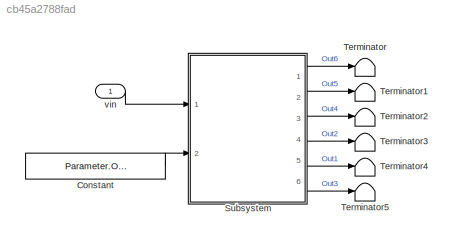
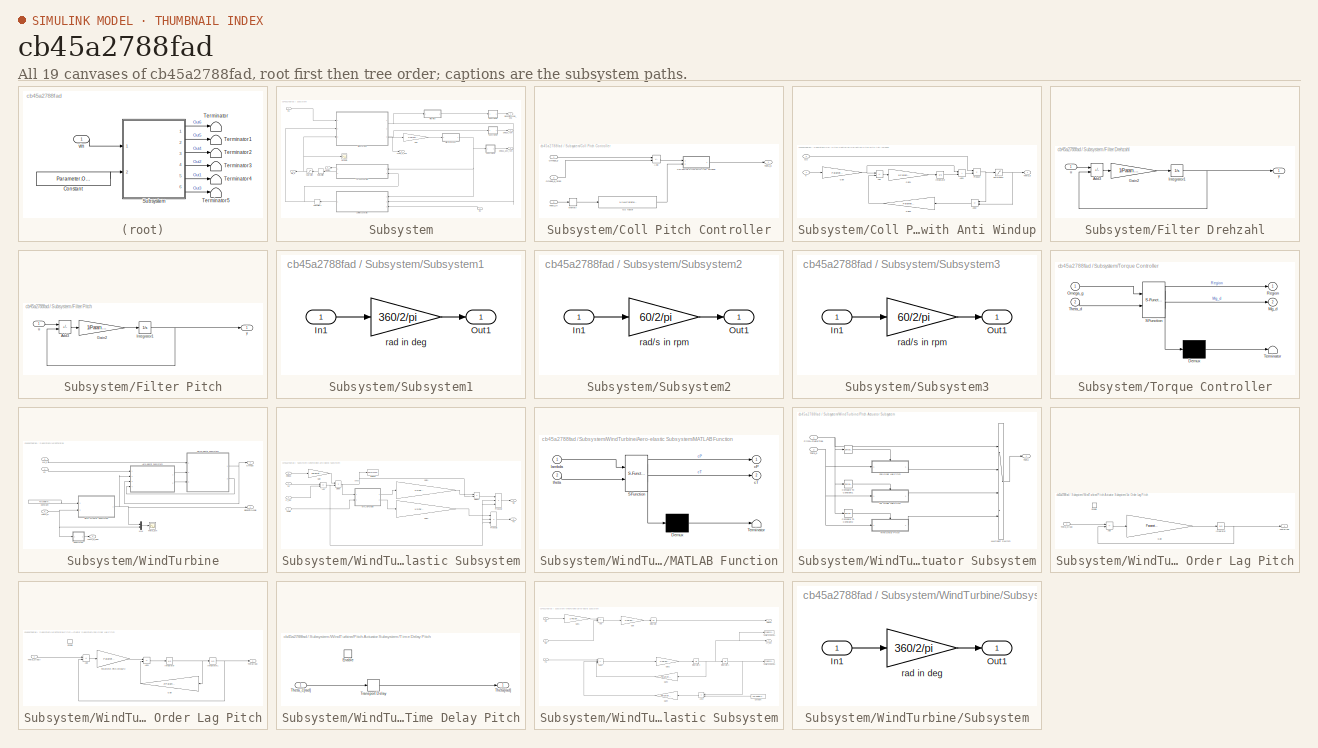
[diagram: thumbnail index - all 19 canvases of the model, root first then tree order]
MODEL slx_cb45a2788fad
KIND model
CONFIG AbsTol = auto
CONFIG EnableMultiTasking = on
CONFIG FixedStep = Parameter.Time.dt
CONFIG MaxStep = auto
CONFIG MinStep = auto
CONFIG RelTol = 1e-3
CONFIG SampleTimeConstraint = Unconstrained
CONFIG SolverName = ode4
CONFIG StartTime = 0.0
CONFIG StopTime = 630
BLOCK [Constant] Constant
  Value = Parameter.Omega_g_rated
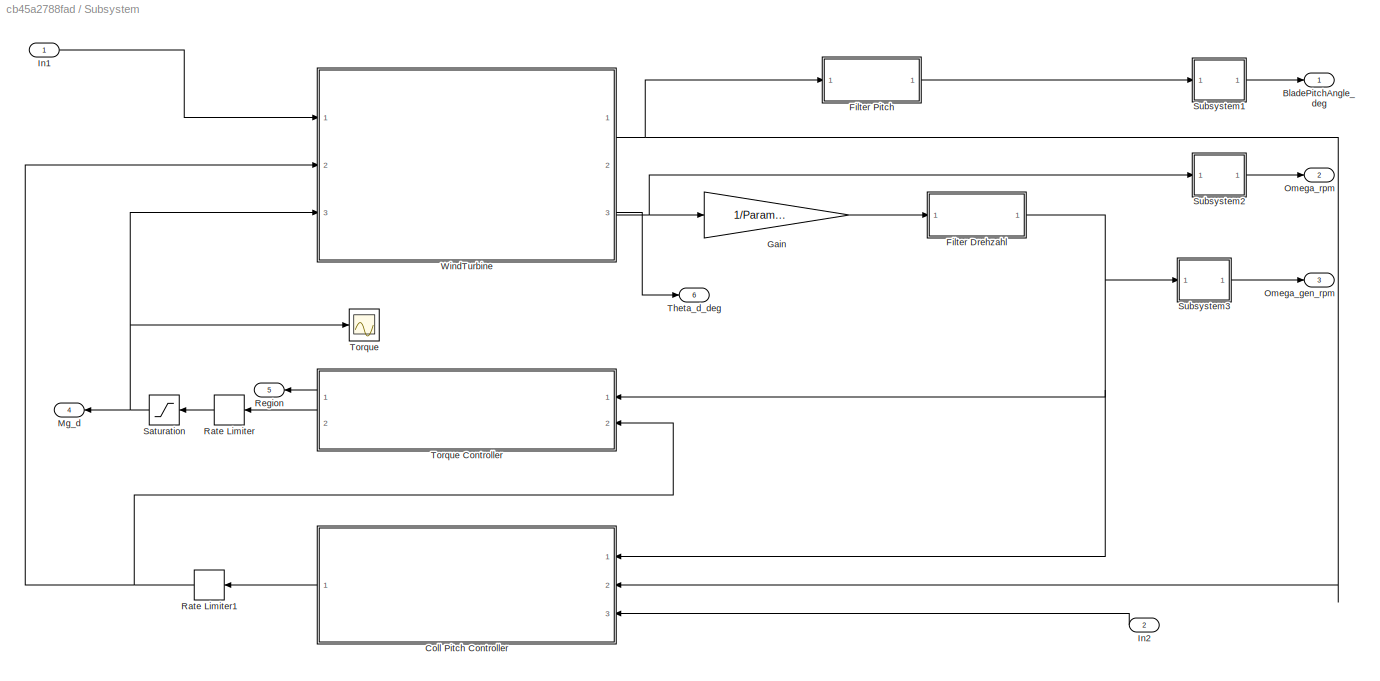
BLOCK [SubSystem] Subsystem
  Ports = [2, 6]
  RequestExecContextInheritance = off
BLOCK [Outport] Subsystem/BladePitchAngle_deg
  VectorParamsAs1DForOutWhenUnconnected = off
BLOCK [SubSystem] Subsystem/Coll Pitch Controller
  Ports = [3, 1]
  RequestExecContextInheritance = off
BLOCK [Sum] Subsystem/Coll Pitch Controller/Add
  IconShape = rectangular
  Inputs = +-
  Ports = [2, 1]
BLOCK [SubSystem] Subsystem/Coll Pitch Controller/Collective Pitch with Anti Windup
  Ports = [2, 1]
  RequestExecContextInheritance = off
BLOCK [Sum] Subsystem/Coll Pitch Controller/Collective Pitch with Anti Windup/Add
  IconShape = rectangular
  Inputs = +-
  Ports = [2, 1]
BLOCK [Sum] Subsystem/Coll Pitch Controller/Collective Pitch with Anti Windup/Add1
  IconShape = rectangular
  Ports = [2, 1]
BLOCK [Sum] Subsystem/Coll Pitch Controller/Collective Pitch with Anti Windup/Add2
  IconShape = rectangular
  Inputs = +-
  Ports = [2, 1]
BLOCK [Inport] Subsystem/Coll Pitch Controller/Collective Pitch with Anti Windup/GS
  Port = 2
BLOCK [Gain] Subsystem/Coll Pitch Controller/Collective Pitch with Anti Windup/Gain
  Gain = Parameter.Pitch.CPC.KP
BLOCK [Gain] Subsystem/Coll Pitch Controller/Collective Pitch with Anti Windup/Gain1
  Gain = 1/Parameter.Pitch.CPC.TI
BLOCK [Gain] Subsystem/Coll Pitch Controller/Collective Pitch with Anti Windup/Gain2
  Gain = Parameter.Pitch.CPC.AntiWindUp
BLOCK [Integrator] Subsystem/Coll Pitch Controller/Collective Pitch with Anti Windup/Integrator
  InitialCondition = Parameter.Pitch.Theta0*(1+Parameter.Pitch.Theta0/Parameter.Pitch.CPC.GS_factor)
  Ports = [1, 1]
BLOCK [Product] Subsystem/Coll Pitch Controller/Collective Pitch with Anti Windup/Product
  Ports = [2, 1]
BLOCK [Saturate] Subsystem/Coll Pitch Controller/Collective Pitch with Anti Windup/Saturation1
  LowerLimit = Parameter.Pitch.Min
  UpperLimit = Parameter.Pitch.Max
BLOCK [Outport] Subsystem/Coll Pitch Controller/Collective Pitch with Anti Windup/Theta_d
  VectorParamsAs1DForOutWhenUnconnected = off
BLOCK [Inport] Subsystem/Coll Pitch Controller/Collective Pitch with Anti Windup/e
BLOCK [Fcn] Subsystem/Coll Pitch Controller/GS factor 
  Expr = 1/(1+u/Parameter.Pitch.CPC.GS_factor)
BLOCK [Memory] Subsystem/Coll Pitch Controller/Memory
  InitialCondition = Parameter.Pitch.Theta0
BLOCK [Inport] Subsystem/Coll Pitch Controller/Omega_g
BLOCK [Inport] Subsystem/Coll Pitch Controller/Omega_g_rated
  Port = 3
BLOCK [Outport] Subsystem/Coll Pitch Controller/Theta_d
  VectorParamsAs1DForOutWhenUnconnected = off
BLOCK [Inport] Subsystem/Coll Pitch Controller/Theta_in
  Port = 2
BLOCK [SubSystem] Subsystem/Filter Drehzahl
  Ports = [1, 1]
  RequestExecContextInheritance = off
BLOCK [Sum] Subsystem/Filter Drehzahl/Add3
  IconShape = rectangular
  Inputs = +-
  Ports = [2, 1]
BLOCK [Gain] Subsystem/Filter Drehzahl/Gain2
  Gain = 1/Parameter.VSControl.FilterConstant
  OutDataTypeStr = Inherit: Same as input
  ParamDataTypeStr = Inherit: Same as input
  SaturateOnIntegerOverflow = on
BLOCK [Integrator] Subsystem/Filter Drehzahl/Integrator1
  InitialCondition = Parameter.Omega_g0
  Ports = [1, 1]
BLOCK [Inport] Subsystem/Filter Drehzahl/u
BLOCK [Outport] Subsystem/Filter Drehzahl/y
  VectorParamsAs1DForOutWhenUnconnected = off
BLOCK [SubSystem] Subsystem/Filter Pitch
  Ports = [1, 1]
  RequestExecContextInheritance = off
BLOCK [Sum] Subsystem/Filter Pitch/Add3
  IconShape = rectangular
  Inputs = +-
  Ports = [2, 1]
BLOCK [Gain] Subsystem/Filter Pitch/Gain2
  Gain = 1/Parameter.Pitch.FilterConstant
  OutDataTypeStr = Inherit: Same as input
  ParamDataTypeStr = Inherit: Same as input
  SaturateOnIntegerOverflow = on
BLOCK [Integrator] Subsystem/Filter Pitch/Integrator1
  InitialCondition = Parameter.Pitch.Theta0
  Ports = [1, 1]
BLOCK [Inport] Subsystem/Filter Pitch/u
BLOCK [Outport] Subsystem/Filter Pitch/y
  VectorParamsAs1DForOutWhenUnconnected = off
BLOCK [Gain] Subsystem/Gain
  Gain = 1/Parameter.GBRatio
BLOCK [Inport] Subsystem/In1
BLOCK [Inport] Subsystem/In2
  Port = 2
BLOCK [Outport] Subsystem/Mg_d
  Port = 4
  VectorParamsAs1DForOutWhenUnconnected = off
BLOCK [Outport] Subsystem/Omega_gen_rpm
  Port = 3
  VectorParamsAs1DForOutWhenUnconnected = off
BLOCK [Outport] Subsystem/Omega_rpm
  Port = 2
  VectorParamsAs1DForOutWhenUnconnected = off
BLOCK [RateLimiter] Subsystem/Rate Limiter
  FallingSlewLimit = -Parameter.VSControl.VS_MaxRat
  RisingSlewLimit = Parameter.VSControl.VS_MaxRat
  SampleTimeMode = inherited
BLOCK [RateLimiter] Subsystem/Rate Limiter1
  FallingSlewLimit = -Parameter.Pitch.RateLimit
  InitialCondition = Parameter.Pitch.ThetaDot0
  RisingSlewLimit = Parameter.Pitch.RateLimit
  SampleTimeMode = inherited
BLOCK [Outport] Subsystem/Region
  Port = 5
  VectorParamsAs1DForOutWhenUnconnected = off
BLOCK [Saturate] Subsystem/Saturation
  LowerLimit = -inf
  UpperLimit = Parameter.VSControl.VS_MaxTq
BLOCK [SubSystem] Subsystem/Subsystem1
  Ports = [1, 1]
  RequestExecContextInheritance = off
BLOCK [Inport] Subsystem/Subsystem1/In1
BLOCK [Outport] Subsystem/Subsystem1/Out1
  VectorParamsAs1DForOutWhenUnconnected = off
BLOCK [Gain] Subsystem/Subsystem1/rad in deg
  Gain = 360/2/pi
  OutDataTypeStr = Inherit: Same as input
  ParamDataTypeStr = Inherit: Same as input
  SaturateOnIntegerOverflow = on
BLOCK [SubSystem] Subsystem/Subsystem2
  Ports = [1, 1]
  RequestExecContextInheritance = off
BLOCK [Inport] Subsystem/Subsystem2/In1
BLOCK [Outport] Subsystem/Subsystem2/Out1
  VectorParamsAs1DForOutWhenUnconnected = off
BLOCK [Gain] Subsystem/Subsystem2/rad//s in rpm
  Gain = 60/2/pi
  OutDataTypeStr = Inherit: Same as input
  ParamDataTypeStr = Inherit: Same as input
  SaturateOnIntegerOverflow = on
BLOCK [SubSystem] Subsystem/Subsystem3
  Ports = [1, 1]
  RequestExecContextInheritance = off
BLOCK [Inport] Subsystem/Subsystem3/In1
BLOCK [Outport] Subsystem/Subsystem3/Out1
  VectorParamsAs1DForOutWhenUnconnected = off
BLOCK [Gain] Subsystem/Subsystem3/rad//s in rpm
  Gain = 60/2/pi
  OutDataTypeStr = Inherit: Same as input
  ParamDataTypeStr = Inherit: Same as input
  SaturateOnIntegerOverflow = on
BLOCK [Outport] Subsystem/Theta_d_deg
  Port = 6
  VectorParamsAs1DForOutWhenUnconnected = off
BLOCK [Scope] Subsystem/Torque
  Floating = off
  NumInputPorts = 1
  Ports = [1]
  ScopeSpecificationString = Simulink.scopes.TimeScopeBlockCfg('CurrentConfiguration', extmgr.ConfigurationSet(extmgr.Configuration('Core','General UI',true),extmgr.Configuration('Core','Source UI',true),extmgr.Configuration('Sources','WiredSimulink',true,'DataLoggingVariableName','ScopeData3','DataLoggingSaveFormat','Array','DataLoggingDecimation','1','DataLoggingDecimateData',true),extmgr.Configuration('Visuals','Time Domai...<+1617ch>
BLOCK [SubSystem] Subsystem/Torque Controller
  ErrorFcn = Stateflow.Translate.translate
  PermitHierarchicalResolution = ExplicitOnly
  Ports = [2, 2]
  RequestExecContextInheritance = off
  SFBlockType = MATLAB Function
  TreatAsAtomicUnit = on
BLOCK [Demux] Subsystem/Torque Controller/ Demux 
  Outputs = 1
  Ports = [1, 1]
BLOCK [S-Function] Subsystem/Torque Controller/ SFunction 
  EnableBusSupport = off
  FunctionName = sf_sfun
  Parameters = Parameter
  PortCounts = [2 3]
  Ports = [2, 3]
  SFcnIsStateOwnerBlock = off
  SFunctionDeploymentMode = off
  Tag = Stateflow S-Function 2
BLOCK [Terminator] Subsystem/Torque Controller/ Terminator 
BLOCK [Outport] Subsystem/Torque Controller/Mg_d
  Port = 2
  VectorParamsAs1DForOutWhenUnconnected = off
BLOCK [Inport] Subsystem/Torque Controller/Omega_g
BLOCK [Outport] Subsystem/Torque Controller/Region
  VectorParamsAs1DForOutWhenUnconnected = off
BLOCK [Inport] Subsystem/Torque Controller/Theta_d
  Port = 2
BLOCK [SubSystem] Subsystem/WindTurbine
  Ports = [3, 3]
  RequestExecContextInheritance = off
BLOCK [SubSystem] Subsystem/WindTurbine/Aero-elastic Subsystem
  Ports = [4, 2]
  RequestExecContextInheritance = off
BLOCK [Sum] Subsystem/WindTurbine/Aero-elastic Subsystem/Add
  IconShape = rectangular
  Inputs = +-
  Ports = [2, 1]
BLOCK [Product] Subsystem/WindTurbine/Aero-elastic Subsystem/Divide
  Inputs = */
  Ports = [2, 1]
BLOCK [Product] Subsystem/WindTurbine/Aero-elastic Subsystem/Divide1
  Inputs = */
  Ports = [2, 1]
BLOCK [Outport] Subsystem/WindTurbine/Aero-elastic Subsystem/Fa 
  Port = 2
  VectorParamsAs1DForOutWhenUnconnected = off
BLOCK [Gain] Subsystem/WindTurbine/Aero-elastic Subsystem/Gain
  Gain = Parameter.Rotor
BLOCK [Gain] Subsystem/WindTurbine/Aero-elastic Subsystem/Gain1
  Gain = 1/2*Parameter.rho*pi*Parameter.Rotor^3
BLOCK [Gain] Subsystem/WindTurbine/Aero-elastic Subsystem/Gain2
  Gain = 1/2*Parameter.rho*pi*Parameter.Rotor^2
BLOCK [SubSystem] Subsystem/WindTurbine/Aero-elastic Subsystem/MATLAB Function
  ErrorFcn = Stateflow.Translate.translate
  PermitHierarchicalResolution = ExplicitOnly
  Ports = [2, 2]
  RequestExecContextInheritance = off
  SFBlockType = MATLAB Function
  TreatAsAtomicUnit = on
BLOCK [Demux] Subsystem/WindTurbine/Aero-elastic Subsystem/MATLAB Function/ Demux 
  Outputs = 1
  Ports = [1, 1]
BLOCK [S-Function] Subsystem/WindTurbine/Aero-elastic Subsystem/MATLAB Function/ SFunction 
  EnableBusSupport = off
  FunctionName = sf_sfun
  Parameters = cP_modelrm,cT_modelrm
  PortCounts = [2 3]
  Ports = [2, 3]
  SFcnIsStateOwnerBlock = off
  SFunctionDeploymentMode = off
  Tag = Stateflow S-Function 1
BLOCK [Terminator] Subsystem/WindTurbine/Aero-elastic Subsystem/MATLAB Function/ Terminator 
BLOCK [Outport] Subsystem/WindTurbine/Aero-elastic Subsystem/MATLAB Function/cP
  VectorParamsAs1DForOutWhenUnconnected = off
BLOCK [Outport] Subsystem/WindTurbine/Aero-elastic Subsystem/MATLAB Function/cT
  Port = 2
  VectorParamsAs1DForOutWhenUnconnected = off
BLOCK [Inport] Subsystem/WindTurbine/Aero-elastic Subsystem/MATLAB Function/lambda
BLOCK [Inport] Subsystem/WindTurbine/Aero-elastic Subsystem/MATLAB Function/theta
  Port = 2
BLOCK [Outport] Subsystem/WindTurbine/Aero-elastic Subsystem/Ma
  VectorParamsAs1DForOutWhenUnconnected = off
BLOCK [Inport] Subsystem/WindTurbine/Aero-elastic Subsystem/Omega
  Port = 3
BLOCK [Product] Subsystem/WindTurbine/Aero-elastic Subsystem/Product2
  Inputs = 3
  Ports = [3, 1]
  RndMeth = Zero
BLOCK [Product] Subsystem/WindTurbine/Aero-elastic Subsystem/Product3
  Inputs = 3
  Ports = [3, 1]
  RndMeth = Zero
BLOCK [Inport] Subsystem/WindTurbine/Aero-elastic Subsystem/Theta
  Port = 2
BLOCK [ToWorkspace] Subsystem/WindTurbine/Aero-elastic Subsystem/lambda 
  FixptAsFi = on
  MaxDataPoints = inf
  Ports = [1]
  SampleTime = -1
  SaveFormat = Structure With Time
  VariableName = lambda
BLOCK [Inport] Subsystem/WindTurbine/Aero-elastic Subsystem/v0
BLOCK [Inport] Subsystem/WindTurbine/Aero-elastic Subsystem/xT_dot
  Port = 4
BLOCK [Outport] Subsystem/WindTurbine/BladePitchAngle
  VectorParamsAs1DForOutWhenUnconnected = off
BLOCK [Constant] Subsystem/WindTurbine/Constant
  Value = Parameter.Pitch.ActuatorType
BLOCK [Inport] Subsystem/WindTurbine/Mg_d
  Port = 3
BLOCK [Mux] Subsystem/WindTurbine/Mux
  DisplayOption = bar
  Inputs = 2
  Ports = [2, 1]
BLOCK [Outport] Subsystem/WindTurbine/Omega
  Port = 2
  VectorParamsAs1DForOutWhenUnconnected = off
BLOCK [SubSystem] Subsystem/WindTurbine/Pitch Actuator Subsystem
  Ports = [2, 1]
  RequestExecContextInheritance = off
BLOCK [Reference] Subsystem/WindTurbine/Pitch Actuator Subsystem/   REF=simulink/Logic and Bit
Operations/Compare
To Constant
  Ports = [1, 1]
  SourceBlock = simulink/Logic and Bit\nOperations/Compare\nTo Constant
  SourceProductBaseCode = SL
  SourceType = Compare To Constant
BLOCK [SubSystem] Subsystem/WindTurbine/Pitch Actuator Subsystem/1st Order Lag Pitch
  Ports = [1, 1, 1]
  RequestExecContextInheritance = off
  TreatAsAtomicUnit = on
BLOCK [Sum] Subsystem/WindTurbine/Pitch Actuator Subsystem/1st Order Lag Pitch/Add
  IconShape = rectangular
  Inputs = +-
  Ports = [2, 1]
BLOCK [EnablePort] Subsystem/WindTurbine/Pitch Actuator Subsystem/1st Order Lag Pitch/Enable
  Ports = []
BLOCK [Gain] Subsystem/WindTurbine/Pitch Actuator Subsystem/1st Order Lag Pitch/Gain
  Gain = Parameter.Pitch.omega/(2*Parameter.Pitch.xi)
BLOCK [Integrator] Subsystem/WindTurbine/Pitch Actuator Subsystem/1st Order Lag Pitch/Integrator
  InitialCondition = Parameter.Pitch.Theta0
  Ports = [1, 1]
BLOCK [Outport] Subsystem/WindTurbine/Pitch Actuator Subsystem/1st Order Lag Pitch/Theta[rad]
  VectorParamsAs1DForOutWhenUnconnected = off
BLOCK [Inport] Subsystem/WindTurbine/Pitch Actuator Subsystem/1st Order Lag Pitch/Theta_c[rad]
BLOCK [SubSystem] Subsystem/WindTurbine/Pitch Actuator Subsystem/2nd Order Lag Pitch
  Ports = [1, 1, 1]
  RequestExecContextInheritance = off
  TreatAsAtomicUnit = on
BLOCK [Sum] Subsystem/WindTurbine/Pitch Actuator Subsystem/2nd Order Lag Pitch/Add
  IconShape = rectangular
  Inputs = +-
  Ports = [2, 1]
BLOCK [Sum] Subsystem/WindTurbine/Pitch Actuator Subsystem/2nd Order Lag Pitch/Add1
  IconShape = rectangular
  Inputs = +-
  Ports = [2, 1]
BLOCK [EnablePort] Subsystem/WindTurbine/Pitch Actuator Subsystem/2nd Order Lag Pitch/Enable
  Ports = []
BLOCK [Gain] Subsystem/WindTurbine/Pitch Actuator Subsystem/2nd Order Lag Pitch/Gain
  Gain = 2*Parameter.Pitch.xi*Parameter.Pitch.omega
BLOCK [Integrator] Subsystem/WindTurbine/Pitch Actuator Subsystem/2nd Order Lag Pitch/Integrator
  InitialCondition = Parameter.Pitch.ThetaDot0
  Ports = [1, 1]
BLOCK [Integrator] Subsystem/WindTurbine/Pitch Actuator Subsystem/2nd Order Lag Pitch/Integrator1
  InitialCondition = Parameter.Pitch.Theta0
  Ports = [1, 1]
BLOCK [Gain] Subsystem/WindTurbine/Pitch Actuator Subsystem/2nd Order Lag Pitch/Parameter.Pitch.omega^2
  Gain = Parameter.Pitch.omega^2
BLOCK [Outport] Subsystem/WindTurbine/Pitch Actuator Subsystem/2nd Order Lag Pitch/Theta[rad] 
  VectorParamsAs1DForOutWhenUnconnected = off
BLOCK [Inport] Subsystem/WindTurbine/Pitch Actuator Subsystem/2nd Order Lag Pitch/Theta_c[rad])
BLOCK [Reference] Subsystem/WindTurbine/Pitch Actuator Subsystem/Compare To Constant1  REF=simulink/Logic and Bit
Operations/Compare
To Constant
  Ports = [1, 1]
  SourceBlock = simulink/Logic and Bit\nOperations/Compare\nTo Constant
  SourceProductBaseCode = SL
  SourceType = Compare To Constant
BLOCK [Reference] Subsystem/WindTurbine/Pitch Actuator Subsystem/Compare To Constant2  REF=simulink/Logic and Bit
Operations/Compare
To Constant
  Ports = [1, 1]
  SourceBlock = simulink/Logic and Bit\nOperations/Compare\nTo Constant
  SourceProductBaseCode = SL
  SourceType = Compare To Constant
BLOCK [MultiPortSwitch] Subsystem/WindTurbine/Pitch Actuator Subsystem/Multiport Switch
  InputSameDT = off
  Ports = [4, 1]
  SaturateOnIntegerOverflow = off
BLOCK [Inport] Subsystem/WindTurbine/Pitch Actuator Subsystem/PitchActuatorType 
BLOCK [Outport] Subsystem/WindTurbine/Pitch Actuator Subsystem/Theta
  VectorParamsAs1DForOutWhenUnconnected = off
BLOCK [Inport] Subsystem/WindTurbine/Pitch Actuator Subsystem/Theta_d
  Port = 2
BLOCK [SubSystem] Subsystem/WindTurbine/Pitch Actuator Subsystem/Time Delay Pitch
  Ports = [1, 1, 1]
  RequestExecContextInheritance = off
  TreatAsAtomicUnit = on
BLOCK [EnablePort] Subsystem/WindTurbine/Pitch Actuator Subsystem/Time Delay Pitch/Enable
  Ports = []
BLOCK [Outport] Subsystem/WindTurbine/Pitch Actuator Subsystem/Time Delay Pitch/Theta[rad]
  VectorParamsAs1DForOutWhenUnconnected = off
BLOCK [Inport] Subsystem/WindTurbine/Pitch Actuator Subsystem/Time Delay Pitch/Theta_c[rad]
BLOCK [TransportDelay] Subsystem/WindTurbine/Pitch Actuator Subsystem/Time Delay Pitch/Transport Delay
  DelayTime = Parameter.Pitch.Delay
  InitialOutput = Parameter.Pitch.Theta0
  Ports = [1, 1]
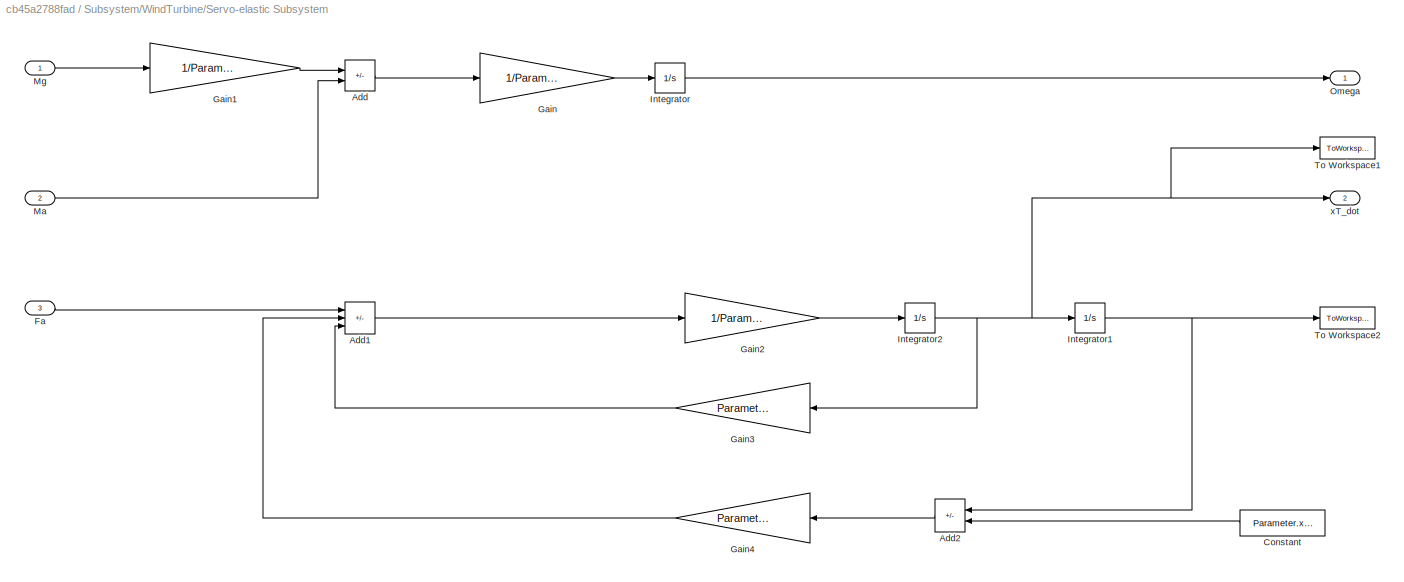
BLOCK [SubSystem] Subsystem/WindTurbine/Servo-elastic Subsystem
  Ports = [3, 2]
  RequestExecContextInheritance = off
BLOCK [Sum] Subsystem/WindTurbine/Servo-elastic Subsystem/Add
  IconShape = rectangular
  Inputs = -+
  Ports = [2, 1]
BLOCK [Sum] Subsystem/WindTurbine/Servo-elastic Subsystem/Add1
  IconShape = rectangular
  Inputs = +--
  Ports = [3, 1]
BLOCK [Sum] Subsystem/WindTurbine/Servo-elastic Subsystem/Add2
  IconShape = rectangular
  Inputs = +-
  Ports = [2, 1]
BLOCK [Constant] Subsystem/WindTurbine/Servo-elastic Subsystem/Constant
  Value = Parameter.xT0
BLOCK [Inport] Subsystem/WindTurbine/Servo-elastic Subsystem/Fa
  Port = 3
BLOCK [Gain] Subsystem/WindTurbine/Servo-elastic Subsystem/Gain
  Gain = 1/Parameter.Inertia
BLOCK [Gain] Subsystem/WindTurbine/Servo-elastic Subsystem/Gain1
  Gain = 1/Parameter.GBRatio
BLOCK [Gain] Subsystem/WindTurbine/Servo-elastic Subsystem/Gain2
  Gain = 1/Parameter.mTe
BLOCK [Gain] Subsystem/WindTurbine/Servo-elastic Subsystem/Gain3
  Gain = Parameter.cTe
BLOCK [Gain] Subsystem/WindTurbine/Servo-elastic Subsystem/Gain4
  Gain = Parameter.kTe
BLOCK [Integrator] Subsystem/WindTurbine/Servo-elastic Subsystem/Integrator
  InitialCondition = Parameter.Omega0
  Ports = [1, 1]
BLOCK [Integrator] Subsystem/WindTurbine/Servo-elastic Subsystem/Integrator1
  InitialCondition = Parameter.xT0
  Ports = [1, 1]
BLOCK [Integrator] Subsystem/WindTurbine/Servo-elastic Subsystem/Integrator2
  InitialCondition = Parameter.xt_dot0
  Ports = [1, 1]
BLOCK [Inport] Subsystem/WindTurbine/Servo-elastic Subsystem/Ma
  Port = 2
BLOCK [Inport] Subsystem/WindTurbine/Servo-elastic Subsystem/Mg
BLOCK [Outport] Subsystem/WindTurbine/Servo-elastic Subsystem/Omega
  VectorParamsAs1DForOutWhenUnconnected = off
BLOCK [ToWorkspace] Subsystem/WindTurbine/Servo-elastic Subsystem/To Workspace1
  MaxDataPoints = inf
  Ports = [1]
  SampleTime = -1
  SaveFormat = Structure With Time
  VariableName = xT_dot
BLOCK [ToWorkspace] Subsystem/WindTurbine/Servo-elastic Subsystem/To Workspace2
  MaxDataPoints = inf
  Ports = [1]
  SampleTime = -1
  SaveFormat = Structure With Time
  VariableName = xT
BLOCK [Outport] Subsystem/WindTurbine/Servo-elastic Subsystem/xT_dot 
  Port = 2
  VectorParamsAs1DForOutWhenUnconnected = off
BLOCK [SubSystem] Subsystem/WindTurbine/Subsystem
  Ports = [1, 1]
  RequestExecContextInheritance = off
BLOCK [Inport] Subsystem/WindTurbine/Subsystem/In1
BLOCK [Outport] Subsystem/WindTurbine/Subsystem/Out1
  VectorParamsAs1DForOutWhenUnconnected = off
BLOCK [Gain] Subsystem/WindTurbine/Subsystem/rad in deg
  Gain = 360/2/pi
  OutDataTypeStr = Inherit: Same as input
  ParamDataTypeStr = Inherit: Same as input
  SaturateOnIntegerOverflow = on
BLOCK [Inport] Subsystem/WindTurbine/Theta_d
  Port = 2
BLOCK [Outport] Subsystem/WindTurbine/Theta_d_deg
  IconDisplay = Port number and signal name
  Port = 3
  VectorParamsAs1DForOutWhenUnconnected = off
BLOCK [Scope] Subsystem/WindTurbine/Theta_dyn 
  Floating = off
  NumInputPorts = 1
  Ports = [1]
  ScopeSpecificationString = C++SS(StrPVP('Location','[188, 365, 512, 604]'),StrPVP('Open','off'),MxPVP('AxesTitles',54,'struct(''axes1'',''%<SignalLabel>'')'),MxPVP('ScopeGraphics',57,'struct(''FigureColor'',''[0.5 0.5 0.5]'',''AxesColor'',''[0 0 0]'',''AxesTickColor'',''[1 1 1]'',''LineColors'',''[1 1 0;1 0 1;0 1 1;1 0 0;0 1 0;0 0 1]'',''LineStyles'',''-|-|-|-|-|-'',''LineWidths'',''[0.5 0.5 0.5 0.5 0.5 0.5]'',''MarkerStyle...<+251ch>
BLOCK [Inport] Subsystem/WindTurbine/v0
BLOCK [Terminator] Terminator
BLOCK [Terminator] Terminator1
BLOCK [Terminator] Terminator2
BLOCK [Terminator] Terminator3
BLOCK [Terminator] Terminator4
BLOCK [Terminator] Terminator5
BLOCK [Inport] vin
ANNOTATION Subsystem/WindTurbine/Aero-elastic Subsystem: lambda
LINE Constant:1 -> Subsystem:2
LINE Subsystem/Coll Pitch Controller/Add:1 -> Subsystem/Coll Pitch Controller/Collective Pitch with Anti Windup:1
LINE Subsystem/Coll Pitch Controller/Collective Pitch with Anti Windup/Add1:1 -> Subsystem/Coll Pitch Controller/Collective Pitch with Anti Windup/Product:2
LINE Subsystem/Coll Pitch Controller/Collective Pitch with Anti Windup/Add2:1 -> Subsystem/Coll Pitch Controller/Collective Pitch with Anti Windup/Gain2:1
LINE Subsystem/Coll Pitch Controller/Collective Pitch with Anti Windup/Add:1 -> Subsystem/Coll Pitch Controller/Collective Pitch with Anti Windup/Gain1:1
LINE Subsystem/Coll Pitch Controller/Collective Pitch with Anti Windup/GS:1 -> Subsystem/Coll Pitch Controller/Collective Pitch with Anti Windup/Product:1
LINE Subsystem/Coll Pitch Controller/Collective Pitch with Anti Windup/Gain1:1 -> Subsystem/Coll Pitch Controller/Collective Pitch with Anti Windup/Integrator:1
LINE Subsystem/Coll Pitch Controller/Collective Pitch with Anti Windup/Gain2:1 -> Subsystem/Coll Pitch Controller/Collective Pitch with Anti Windup/Add:2
NET Subsystem/Coll Pitch Controller/Collective Pitch with Anti Windup/Gain:1 -> Subsystem/Coll Pitch Controller/Collective Pitch with Anti Windup/Add1:1, Subsystem/Coll Pitch Controller/Collective Pitch with Anti Windup/Add:1
LINE Subsystem/Coll Pitch Controller/Collective Pitch with Anti Windup/Integrator:1 -> Subsystem/Coll Pitch Controller/Collective Pitch with Anti Windup/Add1:2
NET Subsystem/Coll Pitch Controller/Collective Pitch with Anti Windup/Product:1 -> Subsystem/Coll Pitch Controller/Collective Pitch with Anti Windup/Add2:1, Subsystem/Coll Pitch Controller/Collective Pitch with Anti Windup/Saturation1:1
NET Subsystem/Coll Pitch Controller/Collective Pitch with Anti Windup/Saturation1:1 -> Subsystem/Coll Pitch Controller/Collective Pitch with Anti Windup/Add2:2, Subsystem/Coll Pitch Controller/Collective Pitch with Anti Windup/Theta_d:1
LINE Subsystem/Coll Pitch Controller/Collective Pitch with Anti Windup/e:1 -> Subsystem/Coll Pitch Controller/Collective Pitch with Anti Windup/Gain:1
LINE Subsystem/Coll Pitch Controller/Collective Pitch with Anti Windup:1 -> Subsystem/Coll Pitch Controller/Theta_d:1
LINE Subsystem/Coll Pitch Controller/GS factor :1 -> Subsystem/Coll Pitch Controller/Collective Pitch with Anti Windup:2
LINE Subsystem/Coll Pitch Controller/Memory:1 -> Subsystem/Coll Pitch Controller/GS factor :1
LINE Subsystem/Coll Pitch Controller/Omega_g:1 -> Subsystem/Coll Pitch Controller/Add:1
LINE Subsystem/Coll Pitch Controller/Omega_g_rated:1 -> Subsystem/Coll Pitch Controller/Add:2
LINE Subsystem/Coll Pitch Controller/Theta_in:1 -> Subsystem/Coll Pitch Controller/Memory:1
LINE Subsystem/Coll Pitch Controller:1 -> Subsystem/Rate Limiter1:1
LINE Subsystem/Filter Drehzahl/Add3:1 -> Subsystem/Filter Drehzahl/Gain2:1
LINE Subsystem/Filter Drehzahl/Gain2:1 -> Subsystem/Filter Drehzahl/Integrator1:1
NET Subsystem/Filter Drehzahl/Integrator1:1 -> Subsystem/Filter Drehzahl/Add3:2, Subsystem/Filter Drehzahl/y:1
LINE Subsystem/Filter Drehzahl/u:1 -> Subsystem/Filter Drehzahl/Add3:1
NET Subsystem/Filter Drehzahl:1 -> Subsystem/Coll Pitch Controller:1, Subsystem/Subsystem3:1, Subsystem/Torque Controller:1
LINE Subsystem/Filter Pitch/Add3:1 -> Subsystem/Filter Pitch/Gain2:1
LINE Subsystem/Filter Pitch/Gain2:1 -> Subsystem/Filter Pitch/Integrator1:1
NET Subsystem/Filter Pitch/Integrator1:1 -> Subsystem/Filter Pitch/Add3:2, Subsystem/Filter Pitch/y:1
LINE Subsystem/Filter Pitch/u:1 -> Subsystem/Filter Pitch/Add3:1
LINE Subsystem/Filter Pitch:1 -> Subsystem/Subsystem1:1
LINE Subsystem/Gain:1 -> Subsystem/Filter Drehzahl:1
LINE Subsystem/In1:1 -> Subsystem/WindTurbine:1
LINE Subsystem/In2:1 -> Subsystem/Coll Pitch Controller:3
NET Subsystem/Rate Limiter1:1 -> Subsystem/Torque Controller:2, Subsystem/WindTurbine:2
LINE Subsystem/Rate Limiter:1 -> Subsystem/Saturation:1
NET Subsystem/Saturation:1 -> Subsystem/Mg_d:1, Subsystem/Torque:1, Subsystem/WindTurbine:3
LINE Subsystem/Subsystem1/In1:1 -> Subsystem/Subsystem1/rad in deg:1
LINE Subsystem/Subsystem1/rad in deg:1 -> Subsystem/Subsystem1/Out1:1
LINE Subsystem/Subsystem1:1 -> Subsystem/BladePitchAngle_deg:1
LINE Subsystem/Subsystem2/In1:1 -> Subsystem/Subsystem2/rad//s in rpm:1
LINE Subsystem/Subsystem2/rad//s in rpm:1 -> Subsystem/Subsystem2/Out1:1
LINE Subsystem/Subsystem2:1 -> Subsystem/Omega_rpm:1
LINE Subsystem/Subsystem3/In1:1 -> Subsystem/Subsystem3/rad//s in rpm:1
LINE Subsystem/Subsystem3/rad//s in rpm:1 -> Subsystem/Subsystem3/Out1:1
LINE Subsystem/Subsystem3:1 -> Subsystem/Omega_gen_rpm:1
LINE Subsystem/Torque Controller:1 -> Subsystem/Region:1
LINE Subsystem/Torque Controller:2 -> Subsystem/Rate Limiter:1
NET Subsystem/WindTurbine/Aero-elastic Subsystem/Add:1 -> Subsystem/WindTurbine/Aero-elastic Subsystem/Divide:2, Subsystem/WindTurbine/Aero-elastic Subsystem/Product2:2, Subsystem/WindTurbine/Aero-elastic Subsystem/Product2:3, Subsystem/WindTurbine/Aero-elastic Subsystem/Product3:2, Subsystem/WindTurbine/Aero-elastic Subsystem/Product3:3
LINE Subsystem/WindTurbine/Aero-elastic Subsystem/Divide1:1 -> Subsystem/WindTurbine/Aero-elastic Subsystem/Product2:1
NET Subsystem/WindTurbine/Aero-elastic Subsystem/Divide:1 -> Subsystem/WindTurbine/Aero-elastic Subsystem/Divide1:2, Subsystem/WindTurbine/Aero-elastic Subsystem/MATLAB Function:1, Subsystem/WindTurbine/Aero-elastic Subsystem/lambda :1
LINE Subsystem/WindTurbine/Aero-elastic Subsystem/Gain1:1 -> Subsystem/WindTurbine/Aero-elastic Subsystem/Divide1:1
LINE Subsystem/WindTurbine/Aero-elastic Subsystem/Gain2:1 -> Subsystem/WindTurbine/Aero-elastic Subsystem/Product3:1
LINE Subsystem/WindTurbine/Aero-elastic Subsystem/Gain:1 -> Subsystem/WindTurbine/Aero-elastic Subsystem/Divide:1
LINE Subsystem/WindTurbine/Aero-elastic Subsystem/MATLAB Function:1 -> Subsystem/WindTurbine/Aero-elastic Subsystem/Gain1:1
LINE Subsystem/WindTurbine/Aero-elastic Subsystem/MATLAB Function:2 -> Subsystem/WindTurbine/Aero-elastic Subsystem/Gain2:1
LINE Subsystem/WindTurbine/Aero-elastic Subsystem/Omega:1 -> Subsystem/WindTurbine/Aero-elastic Subsystem/Gain:1
LINE Subsystem/WindTurbine/Aero-elastic Subsystem/Product2:1 -> Subsystem/WindTurbine/Aero-elastic Subsystem/Ma:1
LINE Subsystem/WindTurbine/Aero-elastic Subsystem/Product3:1 -> Subsystem/WindTurbine/Aero-elastic Subsystem/Fa :1
LINE Subsystem/WindTurbine/Aero-elastic Subsystem/Theta:1 -> Subsystem/WindTurbine/Aero-elastic Subsystem/MATLAB Function:2
LINE Subsystem/WindTurbine/Aero-elastic Subsystem/v0:1 -> Subsystem/WindTurbine/Aero-elastic Subsystem/Add:1
LINE Subsystem/WindTurbine/Aero-elastic Subsystem/xT_dot:1 -> Subsystem/WindTurbine/Aero-elastic Subsystem/Add:2
LINE Subsystem/WindTurbine/Aero-elastic Subsystem:1 -> Subsystem/WindTurbine/Servo-elastic Subsystem:2
LINE Subsystem/WindTurbine/Aero-elastic Subsystem:2 -> Subsystem/WindTurbine/Servo-elastic Subsystem:3
LINE Subsystem/WindTurbine/Constant:1 -> Subsystem/WindTurbine/Pitch Actuator Subsystem:1
LINE Subsystem/WindTurbine/Mg_d:1 -> Subsystem/WindTurbine/Servo-elastic Subsystem:1
LINE Subsystem/WindTurbine/Mux:1 -> Subsystem/WindTurbine/Theta_dyn :1
LINE Subsystem/WindTurbine/Pitch Actuator Subsystem/ :1 -> Subsystem/WindTurbine/Pitch Actuator Subsystem/2nd Order Lag Pitch:enable
LINE Subsystem/WindTurbine/Pitch Actuator Subsystem/1st Order Lag Pitch/Add:1 -> Subsystem/WindTurbine/Pitch Actuator Subsystem/1st Order Lag Pitch/Gain:1
LINE Subsystem/WindTurbine/Pitch Actuator Subsystem/1st Order Lag Pitch/Gain:1 -> Subsystem/WindTurbine/Pitch Actuator Subsystem/1st Order Lag Pitch/Integrator:1
NET Subsystem/WindTurbine/Pitch Actuator Subsystem/1st Order Lag Pitch/Integrator:1 -> Subsystem/WindTurbine/Pitch Actuator Subsystem/1st Order Lag Pitch/Add:2, Subsystem/WindTurbine/Pitch Actuator Subsystem/1st Order Lag Pitch/Theta[rad]:1
LINE Subsystem/WindTurbine/Pitch Actuator Subsystem/1st Order Lag Pitch/Theta_c[rad]:1 -> Subsystem/WindTurbine/Pitch Actuator Subsystem/1st Order Lag Pitch/Add:1
LINE Subsystem/WindTurbine/Pitch Actuator Subsystem/1st Order Lag Pitch:1 -> Subsystem/WindTurbine/Pitch Actuator Subsystem/Multiport Switch:3
LINE Subsystem/WindTurbine/Pitch Actuator Subsystem/2nd Order Lag Pitch/Add1:1 -> Subsystem/WindTurbine/Pitch Actuator Subsystem/2nd Order Lag Pitch/Integrator:1
LINE Subsystem/WindTurbine/Pitch Actuator Subsystem/2nd Order Lag Pitch/Add:1 -> Subsystem/WindTurbine/Pitch Actuator Subsystem/2nd Order Lag Pitch/Parameter.Pitch.omega^2:1
LINE Subsystem/WindTurbine/Pitch Actuator Subsystem/2nd Order Lag Pitch/Gain:1 -> Subsystem/WindTurbine/Pitch Actuator Subsystem/2nd Order Lag Pitch/Add1:2
NET Subsystem/WindTurbine/Pitch Actuator Subsystem/2nd Order Lag Pitch/Integrator1:1 -> Subsystem/WindTurbine/Pitch Actuator Subsystem/2nd Order Lag Pitch/Add:2, Subsystem/WindTurbine/Pitch Actuator Subsystem/2nd Order Lag Pitch/Theta[rad] :1
NET Subsystem/WindTurbine/Pitch Actuator Subsystem/2nd Order Lag Pitch/Integrator:1 -> Subsystem/WindTurbine/Pitch Actuator Subsystem/2nd Order Lag Pitch/Gain:1, Subsystem/WindTurbine/Pitch Actuator Subsystem/2nd Order Lag Pitch/Integrator1:1
LINE Subsystem/WindTurbine/Pitch Actuator Subsystem/2nd Order Lag Pitch/Parameter.Pitch.omega^2:1 -> Subsystem/WindTurbine/Pitch Actuator Subsystem/2nd Order Lag Pitch/Add1:1
LINE Subsystem/WindTurbine/Pitch Actuator Subsystem/2nd Order Lag Pitch/Theta_c[rad]):1 -> Subsystem/WindTurbine/Pitch Actuator Subsystem/2nd Order Lag Pitch/Add:1
LINE Subsystem/WindTurbine/Pitch Actuator Subsystem/2nd Order Lag Pitch:1 -> Subsystem/WindTurbine/Pitch Actuator Subsystem/Multiport Switch:2
LINE Subsystem/WindTurbine/Pitch Actuator Subsystem/Compare To Constant1:1 -> Subsystem/WindTurbine/Pitch Actuator Subsystem/1st Order Lag Pitch:enable
LINE Subsystem/WindTurbine/Pitch Actuator Subsystem/Compare To Constant2:1 -> Subsystem/WindTurbine/Pitch Actuator Subsystem/Time Delay Pitch:enable
LINE Subsystem/WindTurbine/Pitch Actuator Subsystem/Multiport Switch:1 -> Subsystem/WindTurbine/Pitch Actuator Subsystem/Theta:1
NET Subsystem/WindTurbine/Pitch Actuator Subsystem/PitchActuatorType :1 -> Subsystem/WindTurbine/Pitch Actuator Subsystem/ :1, Subsystem/WindTurbine/Pitch Actuator Subsystem/Compare To Constant1:1, Subsystem/WindTurbine/Pitch Actuator Subsystem/Compare To Constant2:1, Subsystem/WindTurbine/Pitch Actuator Subsystem/Multiport Switch:1
NET Subsystem/WindTurbine/Pitch Actuator Subsystem/Theta_d:1 -> Subsystem/WindTurbine/Pitch Actuator Subsystem/1st Order Lag Pitch:1, Subsystem/WindTurbine/Pitch Actuator Subsystem/2nd Order Lag Pitch:1, Subsystem/WindTurbine/Pitch Actuator Subsystem/Time Delay Pitch:1
LINE Subsystem/WindTurbine/Pitch Actuator Subsystem/Time Delay Pitch/Theta_c[rad]:1 -> Subsystem/WindTurbine/Pitch Actuator Subsystem/Time Delay Pitch/Transport Delay:1
LINE Subsystem/WindTurbine/Pitch Actuator Subsystem/Time Delay Pitch/Transport Delay:1 -> Subsystem/WindTurbine/Pitch Actuator Subsystem/Time Delay Pitch/Theta[rad]:1
LINE Subsystem/WindTurbine/Pitch Actuator Subsystem/Time Delay Pitch:1 -> Subsystem/WindTurbine/Pitch Actuator Subsystem/Multiport Switch:4
NET Subsystem/WindTurbine/Pitch Actuator Subsystem:1 -> Subsystem/WindTurbine/Aero-elastic Subsystem:2, Subsystem/WindTurbine/BladePitchAngle:1, Subsystem/WindTurbine/Mux:1
LINE Subsystem/WindTurbine/Servo-elastic Subsystem/Add1:1 -> Subsystem/WindTurbine/Servo-elastic Subsystem/Gain2:1
LINE Subsystem/WindTurbine/Servo-elastic Subsystem/Add2:1 -> Subsystem/WindTurbine/Servo-elastic Subsystem/Gain4:1
LINE Subsystem/WindTurbine/Servo-elastic Subsystem/Add:1 -> Subsystem/WindTurbine/Servo-elastic Subsystem/Gain:1
LINE Subsystem/WindTurbine/Servo-elastic Subsystem/Constant:1 -> Subsystem/WindTurbine/Servo-elastic Subsystem/Add2:2
LINE Subsystem/WindTurbine/Servo-elastic Subsystem/Fa:1 -> Subsystem/WindTurbine/Servo-elastic Subsystem/Add1:1
LINE Subsystem/WindTurbine/Servo-elastic Subsystem/Gain1:1 -> Subsystem/WindTurbine/Servo-elastic Subsystem/Add:1
LINE Subsystem/WindTurbine/Servo-elastic Subsystem/Gain2:1 -> Subsystem/WindTurbine/Servo-elastic Subsystem/Integrator2:1
LINE Subsystem/WindTurbine/Servo-elastic Subsystem/Gain3:1 -> Subsystem/WindTurbine/Servo-elastic Subsystem/Add1:3
LINE Subsystem/WindTurbine/Servo-elastic Subsystem/Gain4:1 -> Subsystem/WindTurbine/Servo-elastic Subsystem/Add1:2
LINE Subsystem/WindTurbine/Servo-elastic Subsystem/Gain:1 -> Subsystem/WindTurbine/Servo-elastic Subsystem/Integrator:1
NET Subsystem/WindTurbine/Servo-elastic Subsystem/Integrator1:1 -> Subsystem/WindTurbine/Servo-elastic Subsystem/Add2:1, Subsystem/WindTurbine/Servo-elastic Subsystem/To Workspace2:1
NET Subsystem/WindTurbine/Servo-elastic Subsystem/Integrator2:1 -> Subsystem/WindTurbine/Servo-elastic Subsystem/Gain3:1, Subsystem/WindTurbine/Servo-elastic Subsystem/Integrator1:1, Subsystem/WindTurbine/Servo-elastic Subsystem/To Workspace1:1, Subsystem/WindTurbine/Servo-elastic Subsystem/xT_dot :1
LINE Subsystem/WindTurbine/Servo-elastic Subsystem/Integrator:1 -> Subsystem/WindTurbine/Servo-elastic Subsystem/Omega:1
LINE Subsystem/WindTurbine/Servo-elastic Subsystem/Ma:1 -> Subsystem/WindTurbine/Servo-elastic Subsystem/Add:2
LINE Subsystem/WindTurbine/Servo-elastic Subsystem/Mg:1 -> Subsystem/WindTurbine/Servo-elastic Subsystem/Gain1:1
NET Subsystem/WindTurbine/Servo-elastic Subsystem:1 -> Subsystem/WindTurbine/Aero-elastic Subsystem:3, Subsystem/WindTurbine/Omega:1
LINE Subsystem/WindTurbine/Servo-elastic Subsystem:2 -> Subsystem/WindTurbine/Aero-elastic Subsystem:4
LINE Subsystem/WindTurbine/Subsystem/In1:1 -> Subsystem/WindTurbine/Subsystem/rad in deg:1
LINE Subsystem/WindTurbine/Subsystem/rad in deg:1 -> Subsystem/WindTurbine/Subsystem/Out1:1
LINE Subsystem/WindTurbine/Subsystem:1 -> Subsystem/WindTurbine/Theta_d_deg:1
NET Subsystem/WindTurbine/Theta_d:1 -> Subsystem/WindTurbine/Mux:2, Subsystem/WindTurbine/Pitch Actuator Subsystem:2, Subsystem/WindTurbine/Subsystem:1
LINE Subsystem/WindTurbine/v0:1 -> Subsystem/WindTurbine/Aero-elastic Subsystem:1
NET Subsystem/WindTurbine:1 -> Subsystem/Coll Pitch Controller:2, Subsystem/Filter Pitch:1
NET Subsystem/WindTurbine:2 -> Subsystem/Gain:1, Subsystem/Subsystem2:1
LINE Subsystem/WindTurbine:3 -> Subsystem/Theta_d_deg:1
LINE Subsystem:1 -> Terminator:1
LINE Subsystem:2 -> Terminator1:1
LINE Subsystem:3 -> Terminator2:1
LINE Subsystem:4 -> Terminator3:1
LINE Subsystem:5 -> Terminator4:1
LINE Subsystem:6 -> Terminator5:1
LINE vin:1 -> Subsystem:1
note: NET lines group one-source signal fan-out (src -> all destinations, sorted); 1:1 wires keep LINE
CHART Subsystem/WindTurbine/Aero-elastic Subsystem/MATLAB Function states=1 transitions=1
  STATE_LABEL 'eML_blk_kernel()'
  STATE_LABEL "SCRIPT:\nfunction [cP,cT] = AeromapsPoly(lambda,theta,cP_modelrm, cT_modelrm)\n%#eml\n\neml.extrinsic('polyvaln');\n\ncP = 0.482;\ncT = 0;\n\n\ncP = polyvaln(cP_modelrm,[lambda,theta]);\ncT = polyvaln(cT_modelrm,[lambda,theta]);"
CHART Subsystem/Torque Controller states=1 transitions=1
  STATE_LABEL 'eML_blk_kernel()'
  STATE_LABEL 'SCRIPT:\nfunction [Region, Mg_d] = VSTorqueController(Omega_g,Theta_d,Parameter)\n\n% Code taken from NREL 5MW WT controller file (DISCON.f90)\nVS_RtGnSp  = Parameter.VSControl.VS_RtGnSp;\nVS_Rgn2K   = Parameter.VSControl.VS_Rgn2K;\nVS_Rgn2Sp  = Parameter.VSControl.VS_Rgn2Sp;\nVS_CtInSp  = Parameter.VSControl.VS_CtInSp;\nVS_RtPwr   = Parameter.VSControl.VS_RtPwr;\nVS_Rgn3MP  = Parameter.VSControl.VS_Rgn3MP...<+1926ch>'
CHART  states=0 transitions=0
CHART  states=0 transitions=0
